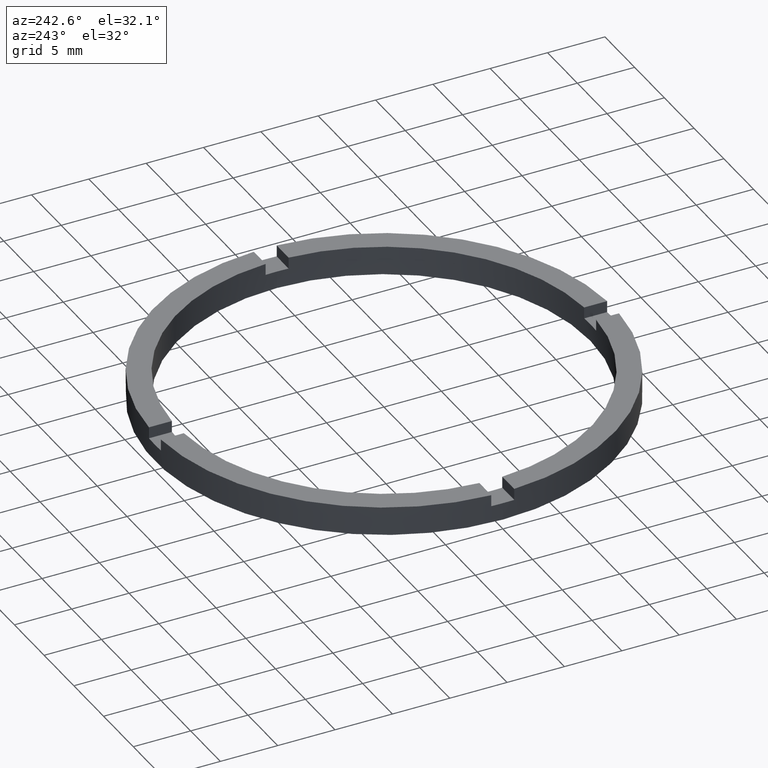
[diagram: clean part render]
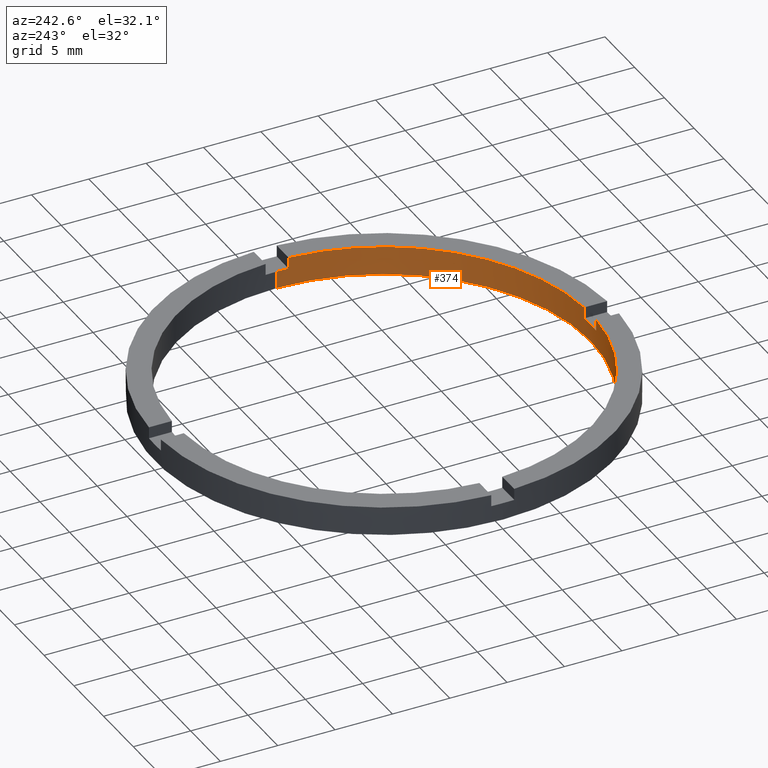
[diagram: same view with one face highlighted and labeled with its STEP entity id]
A machine part, auxiliary view. The second image highlights one B-rep face of the part: STEP entity #374.
In plain terms, the highlighted cylindrical surface (partial cylindrical patch) has radius 18 mm, axis along (-0, -0, -1).
Its self-contained STEP definition (entity closure, byte-faithful):
#2 = AXIS2_PLACEMENT_3D ( 'NONE', #396, #19, #80 ) ;
#19 = DIRECTION ( 'NONE',  ( 0.000000000000000000, 0.000000000000000000, 1.000000000000000000 ) ) ;
#28 = EDGE_CURVE ( 'NONE', #486, #573, #291, .T. ) ;
#31 = CIRCLE ( 'NONE', #2, 18.00000000000000000 ) ;
#32 = FACE_OUTER_BOUND ( 'NONE', #94, .T. ) ;
#37 = VECTOR ( 'NONE', #331, 1000.000000000000000 ) ;
#41 = LINE ( 'NONE', #175, #562 ) ;
#44 = CARTESIAN_POINT ( 'NONE',  ( 17.97220075561141783, -1.000000000000157208, 1.500000000000000000 ) ) ;
#47 = ORIENTED_EDGE ( 'NONE', *, *, #533, .F. ) ;
#48 = DIRECTION ( 'NONE',  ( 0.000000000000000000, 0.000000000000000000, 1.000000000000000000 ) ) ;
#50 = CARTESIAN_POINT ( 'NONE',  ( 0.9999999999998393507, -17.97220075561143560, 2.500000000000000000 ) ) ;
#62 = DIRECTION ( 'NONE',  ( -0.000000000000000000, 0.000000000000000000, 1.000000000000000000 ) ) ;
#80 = DIRECTION ( 'NONE',  ( 1.000000000000000000, 0.000000000000000000, 0.000000000000000000 ) ) ;
#82 = CARTESIAN_POINT ( 'NONE',  ( -17.97220075561142849, -1.000000000000025313, 2.500000000000000000 ) ) ;
#84 = EDGE_CURVE ( 'NONE', #343, #356, #41, .T. ) ;
#94 = EDGE_LOOP ( 'NONE', ( #559, #467, #726, #350, #641, #296, #98, #47, #705, #320, #213, #372 ) ) ;
#98 = ORIENTED_EDGE ( 'NONE', *, *, #514, .T. ) ;
#99 = AXIS2_PLACEMENT_3D ( 'NONE', #671, #257, #597 ) ;
#111 = DIRECTION ( 'NONE',  ( 1.000000000000000000, 0.000000000000000000, 0.000000000000000000 ) ) ;
#126 = CARTESIAN_POINT ( 'NONE',  ( -18.00000000000000000, 0.000000000000000000, 0.000000000000000000 ) ) ;
#127 = VERTEX_POINT ( 'NONE', #312 ) ;
#136 = AXIS2_PLACEMENT_3D ( 'NONE', #276, #389, #484 ) ;
#138 = CARTESIAN_POINT ( 'NONE',  ( -17.97220075561142849, -1.000000000000025313, 1.500000000000000000 ) ) ;
#151 = VECTOR ( 'NONE', #475, 1000.000000000000000 ) ;
#154 = CARTESIAN_POINT ( 'NONE',  ( -1.000000000000160760, -17.97220075561141783, 1.500000000000000000 ) ) ;
#175 = CARTESIAN_POINT ( 'NONE',  ( -17.97220075561142849, -1.000000000000025313, 2.500000000000000000 ) ) ;
#182 = LINE ( 'NONE', #579, #430 ) ;
#189 = CIRCLE ( 'NONE', #681, 18.00000000000000000 ) ;
#213 = ORIENTED_EDGE ( 'NONE', *, *, #334, .T. ) ;
#224 = VERTEX_POINT ( 'NONE', #44 ) ;
#227 = CARTESIAN_POINT ( 'NONE',  ( 18.00000000000000000, 2.204364238465235428E-15, 1.500000000000000000 ) ) ;
#245 = DIRECTION ( 'NONE',  ( -0.000000000000000000, -0.000000000000000000, -1.000000000000000000 ) ) ;
#257 = DIRECTION ( 'NONE',  ( 0.000000000000000000, 0.000000000000000000, 1.000000000000000000 ) ) ;
#259 = CARTESIAN_POINT ( 'NONE',  ( -18.00000000000000000, 0.000000000000000000, 1.500000000000000000 ) ) ;
#276 = CARTESIAN_POINT ( 'NONE',  ( 0.000000000000000000, 0.000000000000000000, 1.500000000000000000 ) ) ;
#285 = VERTEX_POINT ( 'NONE', #259 ) ;
#291 = CIRCLE ( 'NONE', #771, 18.00000000000000000 ) ;
#294 = CARTESIAN_POINT ( 'NONE',  ( 18.00000000000000000, 2.204364238465235428E-15, 2.500000000000000000 ) ) ;
#296 = ORIENTED_EDGE ( 'NONE', *, *, #84, .F. ) ;
#312 = CARTESIAN_POINT ( 'NONE',  ( 18.00000000000000000, 2.204364238465235428E-15, 0.000000000000000000 ) ) ;
#320 = ORIENTED_EDGE ( 'NONE', *, *, #399, .F. ) ;
#322 = DIRECTION ( 'NONE',  ( 0.000000000000000000, 0.000000000000000000, 1.000000000000000000 ) ) ;
#329 = EDGE_CURVE ( 'NONE', #285, #643, #552, .T. ) ;
#331 = DIRECTION ( 'NONE',  ( -0.000000000000000000, -0.000000000000000000, -1.000000000000000000 ) ) ;
#334 = EDGE_CURVE ( 'NONE', #477, #749, #31, .T. ) ;
#336 = DIRECTION ( 'NONE',  ( -0.000000000000000000, -0.000000000000000000, -1.000000000000000000 ) ) ;
#343 = VERTEX_POINT ( 'NONE', #82 ) ;
#346 = DIRECTION ( 'NONE',  ( 0.000000000000000000, 0.000000000000000000, 1.000000000000000000 ) ) ;
#350 = ORIENTED_EDGE ( 'NONE', *, *, #329, .F. ) ;
#356 = VERTEX_POINT ( 'NONE', #138 ) ;
#361 = CARTESIAN_POINT ( 'NONE',  ( -1.000000000000160760, -17.97220075561141783, 2.500000000000000000 ) ) ;
#366 = VERTEX_POINT ( 'NONE', #227 ) ;
#372 = ORIENTED_EDGE ( 'NONE', *, *, #724, .F. ) ;
#374 = ADVANCED_FACE ( 'NONE', ( #32 ), #688, .F. ) ;
#389 = DIRECTION ( 'NONE',  ( 0.000000000000000000, 0.000000000000000000, 1.000000000000000000 ) ) ;
#396 = CARTESIAN_POINT ( 'NONE',  ( 0.000000000000000000, 0.000000000000000000, 2.500000000000000000 ) ) ;
#397 = EDGE_CURVE ( 'NONE', #224, #366, #684, .T. ) ;
#399 = EDGE_CURVE ( 'NONE', #477, #573, #670, .T. ) ;
#430 = VECTOR ( 'NONE', #48, 1000.000000000000000 ) ;
#434 = CIRCLE ( 'NONE', #782, 18.00000000000000000 ) ;
#437 = CARTESIAN_POINT ( 'NONE',  ( 0.000000000000000000, 0.000000000000000000, 1.500000000000000000 ) ) ;
#463 = LINE ( 'NONE', #528, #712 ) ;
#467 = ORIENTED_EDGE ( 'NONE', *, *, #777, .T. ) ;
#469 = LINE ( 'NONE', #294, #718 ) ;
#475 = DIRECTION ( 'NONE',  ( -0.000000000000000000, -0.000000000000000000, -1.000000000000000000 ) ) ;
#477 = VERTEX_POINT ( 'NONE', #523 ) ;
#480 = AXIS2_PLACEMENT_3D ( 'NONE', #554, #623, #618 ) ;
#484 = DIRECTION ( 'NONE',  ( 1.000000000000000000, 0.000000000000000000, 0.000000000000000000 ) ) ;
#486 = VERTEX_POINT ( 'NONE', #154 ) ;
#501 = CARTESIAN_POINT ( 'NONE',  ( 0.000000000000000000, 0.000000000000000000, 1.500000000000000000 ) ) ;
#514 = EDGE_CURVE ( 'NONE', #343, #735, #434, .T. ) ;
#523 = CARTESIAN_POINT ( 'NONE',  ( 0.9999999999998393507, -17.97220075561143560, 2.500000000000000000 ) ) ;
#526 = DIRECTION ( 'NONE',  ( 1.000000000000000000, 0.000000000000000000, 0.000000000000000000 ) ) ;
#528 = CARTESIAN_POINT ( 'NONE',  ( 17.97220075561141783, -1.000000000000157208, 2.500000000000000000 ) ) ;
#533 = EDGE_CURVE ( 'NONE', #486, #735, #182, .T. ) ;
#550 = CARTESIAN_POINT ( 'NONE',  ( 0.000000000000000000, 0.000000000000000000, 2.500000000000000000 ) ) ;
#552 = LINE ( 'NONE', #577, #37 ) ;
#554 = CARTESIAN_POINT ( 'NONE',  ( 0.000000000000000000, 0.000000000000000000, 2.500000000000000000 ) ) ;
#558 = DIRECTION ( 'NONE',  ( 1.000000000000000000, 0.000000000000000000, 0.000000000000000000 ) ) ;
#559 = ORIENTED_EDGE ( 'NONE', *, *, #397, .T. ) ;
#562 = VECTOR ( 'NONE', #245, 1000.000000000000000 ) ;
#573 = VERTEX_POINT ( 'NONE', #583 ) ;
#577 = CARTESIAN_POINT ( 'NONE',  ( -18.00000000000000000, 0.000000000000000000, 2.500000000000000000 ) ) ;
#579 = CARTESIAN_POINT ( 'NONE',  ( -1.000000000000160760, -17.97220075561141783, 2.500000000000000000 ) ) ;
#583 = CARTESIAN_POINT ( 'NONE',  ( 0.9999999999998393507, -17.97220075561143560, 1.500000000000000000 ) ) ;
#594 = DIRECTION ( 'NONE',  ( 0.000000000000000000, 0.000000000000000000, 1.000000000000000000 ) ) ;
#597 = DIRECTION ( 'NONE',  ( 1.000000000000000000, 0.000000000000000000, 0.000000000000000000 ) ) ;
#618 = DIRECTION ( 'NONE',  ( -1.000000000000000000, 0.000000000000000000, 0.000000000000000000 ) ) ;
#623 = DIRECTION ( 'NONE',  ( -0.000000000000000000, -0.000000000000000000, -1.000000000000000000 ) ) ;
#641 = ORIENTED_EDGE ( 'NONE', *, *, #719, .T. ) ;
#643 = VERTEX_POINT ( 'NONE', #126 ) ;
#653 = EDGE_CURVE ( 'NONE', #643, #127, #680, .T. ) ;
#670 = LINE ( 'NONE', #50, #151 ) ;
#671 = CARTESIAN_POINT ( 'NONE',  ( 0.000000000000000000, 0.000000000000000000, 0.000000000000000000 ) ) ;
#680 = CIRCLE ( 'NONE', #99, 18.00000000000000000 ) ;
#681 = AXIS2_PLACEMENT_3D ( 'NONE', #501, #594, #111 ) ;
#684 = CIRCLE ( 'NONE', #136, 18.00000000000000000 ) ;
#688 = CYLINDRICAL_SURFACE ( 'NONE', #480, 18.00000000000000000 ) ;
#705 = ORIENTED_EDGE ( 'NONE', *, *, #28, .T. ) ;
#712 = VECTOR ( 'NONE', #346, 1000.000000000000000 ) ;
#718 = VECTOR ( 'NONE', #336, 1000.000000000000000 ) ;
#719 = EDGE_CURVE ( 'NONE', #285, #356, #189, .T. ) ;
#724 = EDGE_CURVE ( 'NONE', #224, #749, #463, .T. ) ;
#726 = ORIENTED_EDGE ( 'NONE', *, *, #653, .F. ) ;
#735 = VERTEX_POINT ( 'NONE', #361 ) ;
#749 = VERTEX_POINT ( 'NONE', #783 ) ;
#771 = AXIS2_PLACEMENT_3D ( 'NONE', #437, #62, #526 ) ;
#777 = EDGE_CURVE ( 'NONE', #366, #127, #469, .T. ) ;
#782 = AXIS2_PLACEMENT_3D ( 'NONE', #550, #322, #558 ) ;
#783 = CARTESIAN_POINT ( 'NONE',  ( 17.97220075561141783, -1.000000000000157208, 2.500000000000000000 ) ) ;